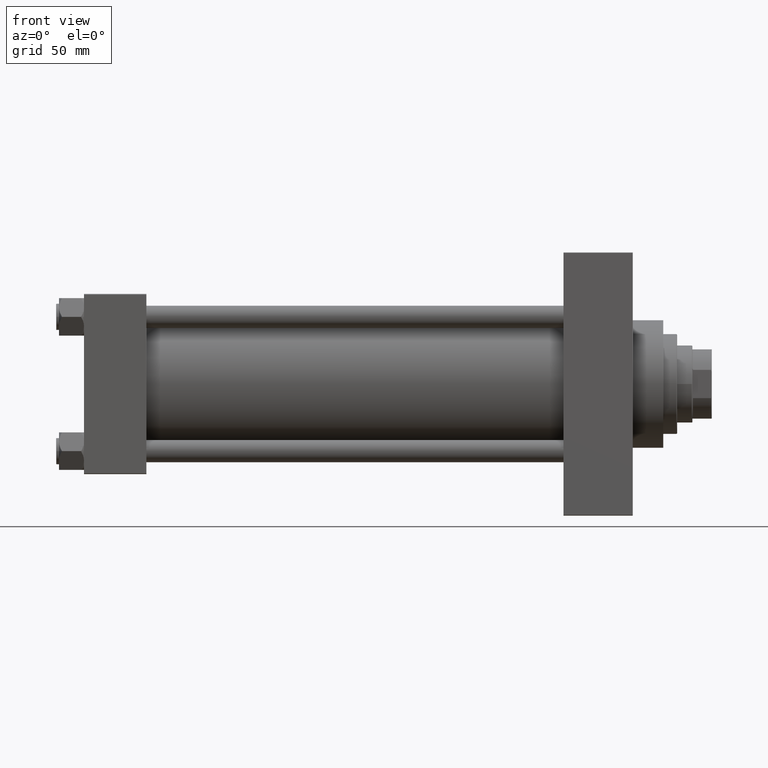
[diagram: clean part render]
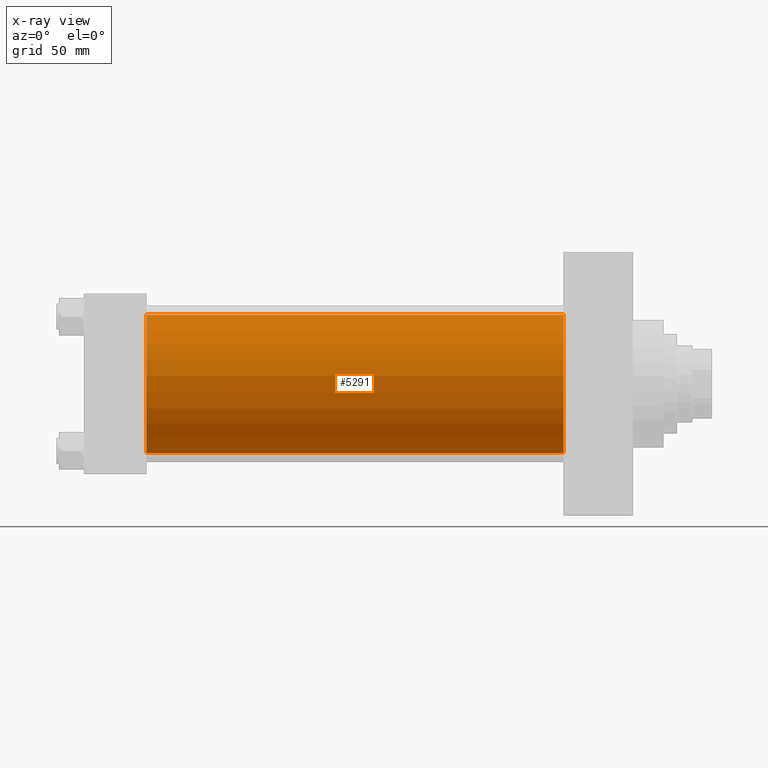
[diagram: x-ray — body ghosted, one internal face saturated and labeled with its STEP entity id]
A machine part, front view, then the same camera in x-ray: the body is ghosted and one INTERNAL B-rep face — a face not visible from any outside direction — is saturated and labeled: STEP entity #5291.
In plain terms, the highlighted cylindrical surface (partial cylindrical patch) has radius 50 mm, axis along (-1, -0, -0).
Its self-contained STEP definition (entity closure, byte-faithful):
#531 = CIRCLE ( 'NONE', #45654, 50.00000000000000000 ) ;
#1409 = EDGE_LOOP ( 'NONE', ( #47663, #31079, #22100, #46226 ) ) ;
#1675 = CARTESIAN_POINT ( 'NONE',  ( 346.0000000000000000, -2.602085213965210642E-15, 0.000000000000000000 ) ) ;
#2096 = FACE_OUTER_BOUND ( 'NONE', #1409, .T. ) ;
#2171 = DIRECTION ( 'NONE',  ( 0.000000000000000000, 0.000000000000000000, -1.000000000000000000 ) ) ;
#2962 = AXIS2_PLACEMENT_3D ( 'NONE', #1675, #28642, #2171 ) ;
#5219 = CARTESIAN_POINT ( 'NONE',  ( 45.00000000000000000, -2.602085213965210642E-15, 50.00000000000000000 ) ) ;
#5291 = ADVANCED_FACE ( 'NONE', ( #2096 ), #21781, .F. ) ;
#6995 = VECTOR ( 'NONE', #21274, 1000.000000000000000 ) ;
#8062 = AXIS2_PLACEMENT_3D ( 'NONE', #33346, #13949, #40160 ) ;
#11709 = DIRECTION ( 'NONE',  ( 1.000000000000000000, 0.000000000000000000, 0.000000000000000000 ) ) ;
#11963 = DIRECTION ( 'NONE',  ( 0.000000000000000000, 0.000000000000000000, -1.000000000000000000 ) ) ;
#12950 = CARTESIAN_POINT ( 'NONE',  ( 346.0000000000000000, -2.602085213965210642E-15, 50.00000000000000000 ) ) ;
#13949 = DIRECTION ( 'NONE',  ( -1.000000000000000000, -0.000000000000000000, -0.000000000000000000 ) ) ;
#16764 = LINE ( 'NONE', #21309, #40815 ) ;
#18699 = VERTEX_POINT ( 'NONE', #5219 ) ;
#21274 = DIRECTION ( 'NONE',  ( -1.000000000000000000, -0.000000000000000000, -0.000000000000000000 ) ) ;
#21309 = CARTESIAN_POINT ( 'NONE',  ( 346.0000000000000000, 3.521148781771555838E-15, -50.00000000000000000 ) ) ;
#21781 = CYLINDRICAL_SURFACE ( 'NONE', #8062, 50.00000000000000000 ) ;
#22100 = ORIENTED_EDGE ( 'NONE', *, *, #39125, .F. ) ;
#24548 = LINE ( 'NONE', #12950, #6995 ) ;
#24690 = CIRCLE ( 'NONE', #2962, 50.00000000000000000 ) ;
#27943 = CARTESIAN_POINT ( 'NONE',  ( 45.00000000000000000, 3.521148781771555838E-15, -50.00000000000000000 ) ) ;
#28642 = DIRECTION ( 'NONE',  ( 1.000000000000000000, 0.000000000000000000, 0.000000000000000000 ) ) ;
#28883 = VERTEX_POINT ( 'NONE', #38748 ) ;
#29656 = EDGE_CURVE ( 'NONE', #28883, #46220, #16764, .T. ) ;
#31079 = ORIENTED_EDGE ( 'NONE', *, *, #29656, .T. ) ;
#31699 = VERTEX_POINT ( 'NONE', #41240 ) ;
#33346 = CARTESIAN_POINT ( 'NONE',  ( 346.0000000000000000, -2.602085213965210642E-15, 0.000000000000000000 ) ) ;
#38748 = CARTESIAN_POINT ( 'NONE',  ( 346.0000000000000000, 3.521148781771555838E-15, -50.00000000000000000 ) ) ;
#39125 = EDGE_CURVE ( 'NONE', #18699, #46220, #531, .T. ) ;
#39272 = EDGE_CURVE ( 'NONE', #31699, #18699, #24548, .T. ) ;
#39882 = EDGE_CURVE ( 'NONE', #31699, #28883, #24690, .T. ) ;
#40160 = DIRECTION ( 'NONE',  ( 0.000000000000000000, 0.000000000000000000, 1.000000000000000000 ) ) ;
#40815 = VECTOR ( 'NONE', #48027, 1000.000000000000000 ) ;
#41240 = CARTESIAN_POINT ( 'NONE',  ( 346.0000000000000000, -2.602085213965210642E-15, 50.00000000000000000 ) ) ;
#42962 = CARTESIAN_POINT ( 'NONE',  ( 45.00000000000000000, -2.602085213965210642E-15, 0.000000000000000000 ) ) ;
#45654 = AXIS2_PLACEMENT_3D ( 'NONE', #42962, #11709, #11963 ) ;
#46220 = VERTEX_POINT ( 'NONE', #27943 ) ;
#46226 = ORIENTED_EDGE ( 'NONE', *, *, #39272, .F. ) ;
#47663 = ORIENTED_EDGE ( 'NONE', *, *, #39882, .T. ) ;
#48027 = DIRECTION ( 'NONE',  ( -1.000000000000000000, -0.000000000000000000, -0.000000000000000000 ) ) ;